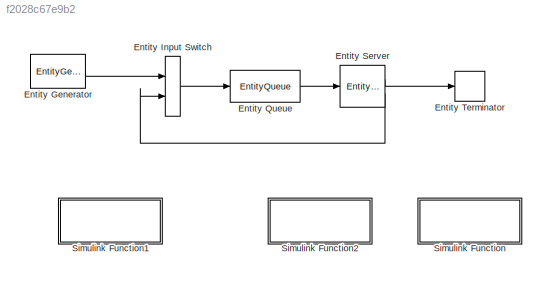
MODEL slx_f2028c67e9b2
KIND model
CONFIG AbsTol = auto
CONFIG FixedStep = auto
CONFIG MaxStep = auto
CONFIG MinStep = auto
CONFIG RelTol = 1e-3
CONFIG SampleTimeConstraint = Unconstrained
CONFIG Solver = VariableStepDiscrete
CONFIG SolverMode = Auto
CONFIG SolverName = VariableStepDiscrete
CONFIG StartTime = 0.0
CONFIG StopTime = 30
BLOCK [EntityGenerator] Entity Generator
  AttributeInitialValue = 1|1|0
  AttributeName = Priority|ServiceTime|Preempted
  EntityType = Structured
  EntityTypeName = Entity
  ExitAction = g(entity.Priority);
  GenerateAction = if rand < 0.3\n    entity.Priority = 1;\n    entity.ServiceTime = 0.9;\nelse\n    entity.Priority = 2;\n    entity.ServiceTime = 1.1;\nend
  OutputPortMap = o3
  OutputPortMessageModes = m
  Ports = [0, 1]
BLOCK [EntityInputSwitch] Entity Input Switch
  InputPortMap = u1,u2
  InputPortMessageModes = m,m
  OutputPortMap = o0
  OutputPortMessageModes = m
  Ports = [2, 1]
BLOCK [EntityQueue] Entity Queue
  InputPortMap = u0
  InputPortMessageModes = m
  OutputPortMap = o5
  OutputPortMessageModes = m
  Ports = [1, 1]
  PrioritySource = Priority
  QueueType = Priority
BLOCK [EntityServer] Entity Server
  Capacity = 1
  EntryAction = entity.Preempted = entity.Preempted + 1;\np(entity.ServiceTime);
  InputPortMap = u2
  InputPortMessageModes = m
  OutputPortMap = o9,o10
  OutputPortMessageModes = m,m
  PermitPreemptionBasedOnAttribute = on
  Ports = [1, 2]
  PreemptAction = entity.Preempted = entity.Preempted + 1;
  ResidualTimeAttributeName = ServiceTime
  SortingAttributeName = Priority
  WriteResidualTimeToAttribute = on
BLOCK [EntityTerminator] Entity Terminator
  EntryAction = f(entity.Preempted);
  InputPortMap = u0
  InputPortMessageModes = m
  Ports = [1]
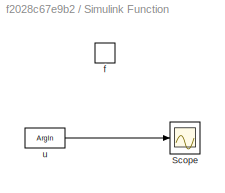
BLOCK [SubSystem] Simulink Function
  Ports = [0, 0, 0, 1]
  RequestExecContextInheritance = off
  TreatAsAtomicUnit = on
  Variant = off
BLOCK [Scope] Simulink Function/Scope
  Ports = [1]
  ScopeSpecificationString = C++SS(StrPVP('SaveName','ScopeData1'))
BLOCK [TriggerPort] Simulink Function/f
  FunctionName = f
  IsSimulinkFunction = on
  Ports = []
  StatesWhenEnabling = held
  TriggerType = function-call
  VariantControl = Variant
BLOCK [ArgIn] Simulink Function/u
  ArgumentName = u
  DisableCoverage = on
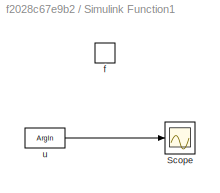
BLOCK [SubSystem] Simulink Function1
  Ports = [0, 0, 0, 1]
  RequestExecContextInheritance = off
  TreatAsAtomicUnit = on
  Variant = off
BLOCK [Scope] Simulink Function1/Scope
  Ports = [1]
  ScopeSpecificationString = C++SS(StrPVP('SaveName','ScopeData2'))
BLOCK [TriggerPort] Simulink Function1/f
  FunctionName = g
  IsSimulinkFunction = on
  Ports = []
  StatesWhenEnabling = held
  TriggerType = function-call
  VariantControl = Variant
BLOCK [ArgIn] Simulink Function1/u
  ArgumentName = u
  DisableCoverage = on
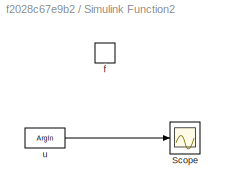
BLOCK [SubSystem] Simulink Function2
  Ports = [0, 0, 0, 1]
  RequestExecContextInheritance = off
  TreatAsAtomicUnit = on
  Variant = off
BLOCK [Scope] Simulink Function2/Scope
  Ports = [1]
  ScopeSpecificationString = C++SS(StrPVP('SaveName','ScopeData'))
BLOCK [TriggerPort] Simulink Function2/f
  FunctionName = p
  IsSimulinkFunction = on
  Ports = []
  StatesWhenEnabling = held
  TriggerType = function-call
  VariantControl = Variant
BLOCK [ArgIn] Simulink Function2/u
  ArgumentName = u
  DisableCoverage = on
LINE Entity Generator:1 -> Entity Input Switch:1
LINE Entity Input Switch:1 -> Entity Queue:1
LINE Entity Queue:1 -> Entity Server:1
LINE Entity Server:1 -> Entity Terminator:1
LINE Entity Server:2 -> Entity Input Switch:2
LINE Simulink Function/u:1 -> Simulink Function/Scope:1
LINE Simulink Function1/u:1 -> Simulink Function1/Scope:1
LINE Simulink Function2/u:1 -> Simulink Function2/Scope:1
